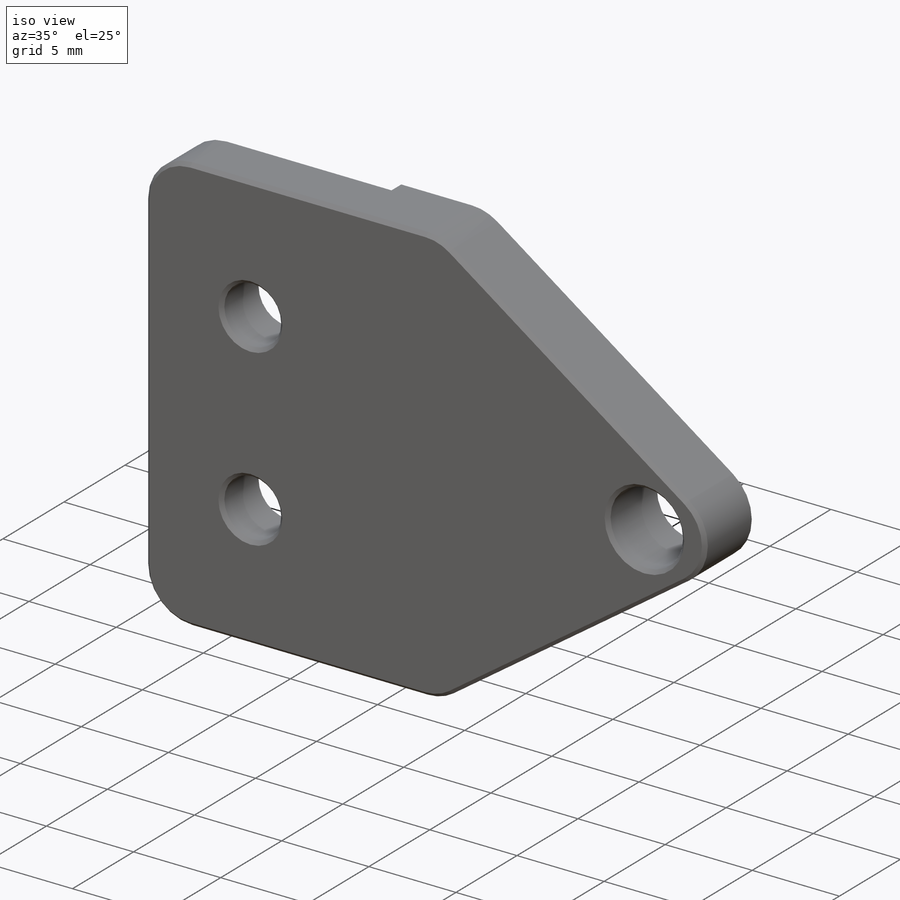
[diagram: iso view]
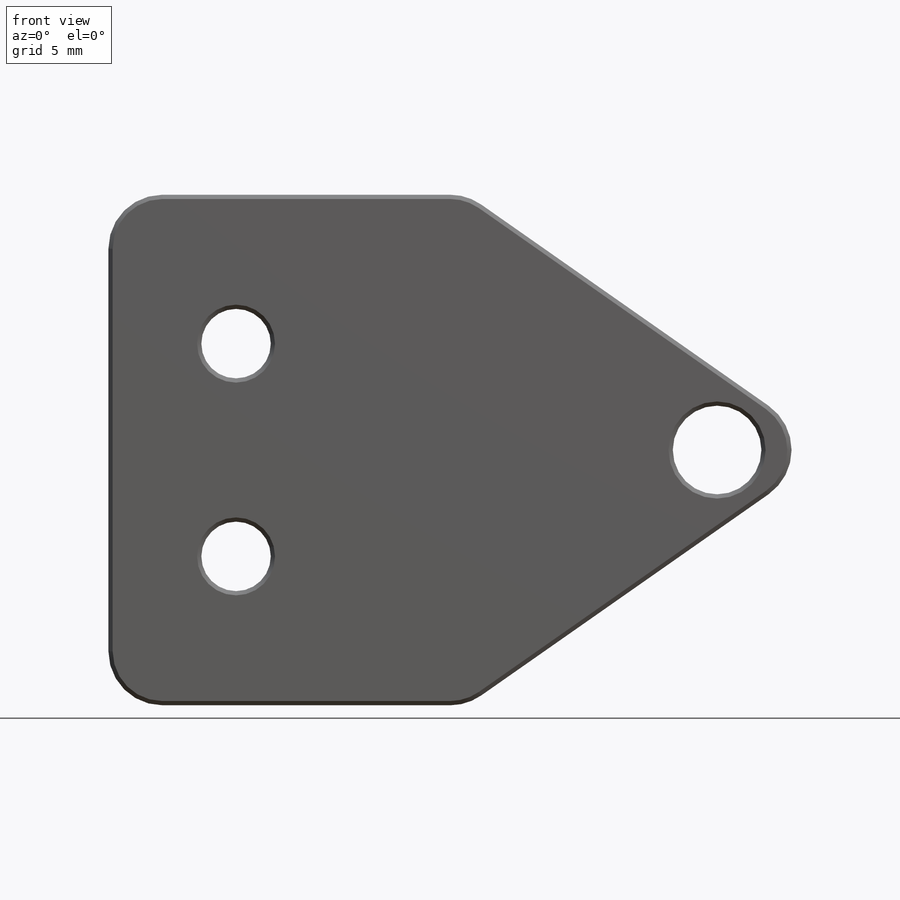
[diagram: front view]
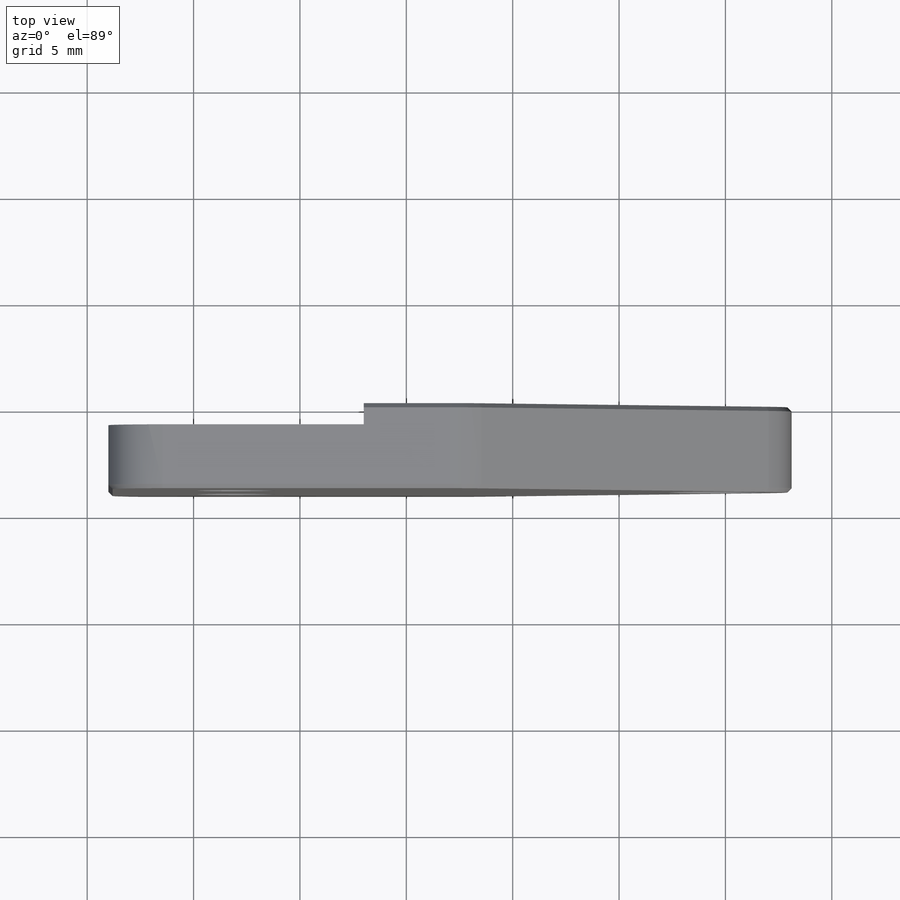
[diagram: top view]
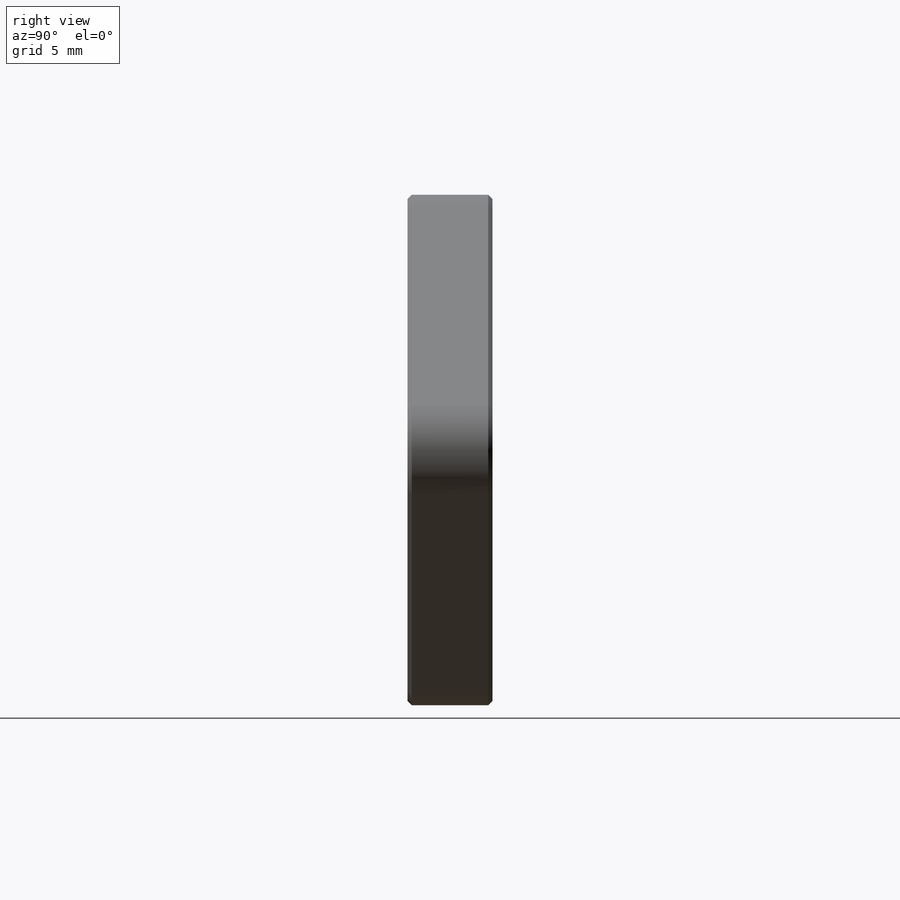
[diagram: right view]
SOLIDWORKS PART (.sldprt)
format: sldprt  version: not decoded by parser v0  size: 276,480 bytes
history: native  units: mm
features: sketch x6, hole x2, material x1, extrude x1, cut_extrude x1, plane x1, fillet x1, chamfer x1 + 1 further entry (+13 scaffold rows collapsed)
feature tree (28):
  scaffold x13  (default folders/planes/origin — collapsed)
  material  "6061-T6 Al"
  "Origin"  ID=-1
  sketch  "Sketch1"  dims[c1.D1=~16.306193mm c2.D1=70.0deg c2.D2=34.0mm c2.D3=12.0mm]
  extrude  "Extrude1"  Depth=4mm
  sketch  "Sketch2"  dims[D1=12.0mm D2=1.0mm]
  cut_extrude  "Extrude2"  [1 undecoded]
  plane  "Plane1"
  hole  "#4 Clearance Hole1"  Diameter=3.2639mm Depth=8.382mm
  sketch  "3DSketch1"  dims[c1.D1=6.0mm c1.D2=~2.674386mm c1.D4=5.0mm c1.D3=~3.592278mm c2.D2=5.0mm c3.D2=5.0mm c3.D3=5.0mm]
  sketch  "Sketch3"  dims[hole-wizard template sketch: 47 standard entries collapsed; hole parameters kept: c15.Hole Depth=8.382mm c15.D3=~14.816244mm c15.Drill Angle=118.0deg]
  hole  "#8-32 Tapped Hole1"  Diameter=3.4544mm Depth=10.7188mm
  sketch  "3DSketch2"  dims[D1=28.61mm]
  sketch  "Sketch4"  dims[hole-wizard template sketch: 29 standard entries collapsed; hole parameters kept: c8.Tap Drill Depth=10.7188mm c8.Thread Major Dia.=4.1656mm c8.Thread Depth=8.3312mm c8.D5=~14.816244mm c8.Drill Angle=118.0deg]
  fillet  "Fillet1"  Radius=2.54mm
  chamfer  "Chamfer1"  Distance=0.2mm Angle=45deg
decode coverage: 11 of 12 modeling features carry decoded parameters; 1 rows unclassified (native names shown)
note: ~ marks probable driven/reference dimensions
note: 1 parameter value undecoded
note: suppression state not decoded; provenance and decode notes live in map.json
